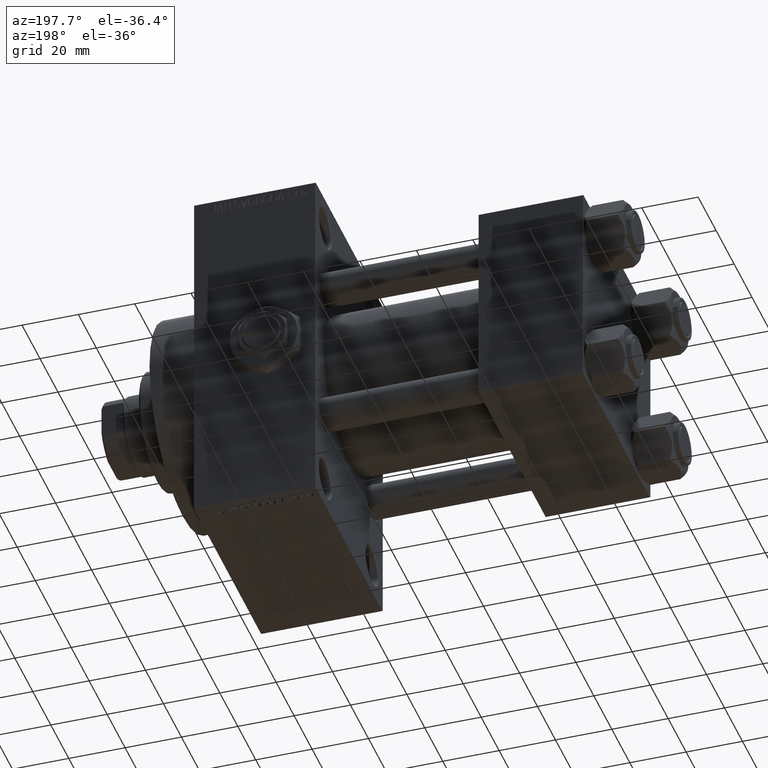
[diagram: clean part render]
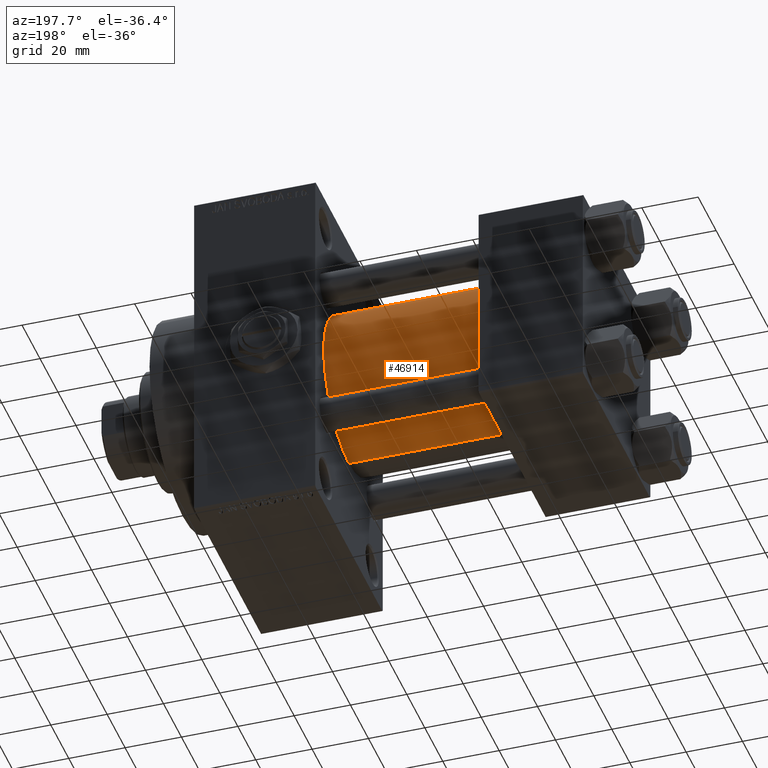
[diagram: same view with one face highlighted and labeled with its STEP entity id]
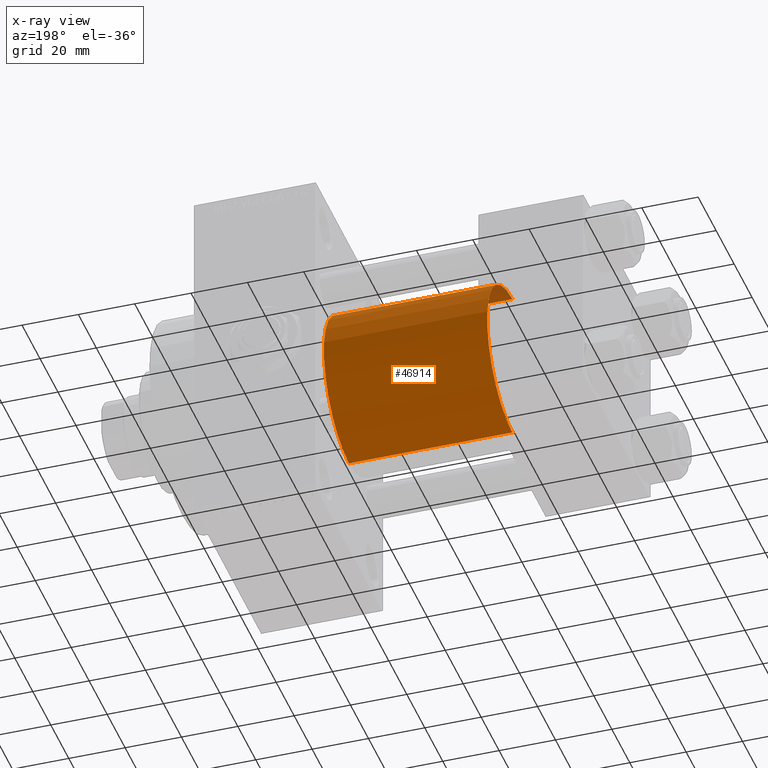
[diagram: x-ray of the same camera — body ghosted, the highlighted face saturated]
A machine part, auxiliary view. The second image highlights one B-rep face of the part: STEP entity #46914.
The next image is the same camera in x-ray: the body ghosted, the highlighted face saturated — about 1% of this face is hidden behind the body in this view.
In plain terms, the highlighted cylindrical surface (partial cylindrical patch) has radius 28 mm, axis along (-1, -0, -0).
Its self-contained STEP definition (entity closure, byte-faithful):
#1261 = ORIENTED_EDGE ( 'NONE', *, *, #38608, .F. ) ;
#2522 = AXIS2_PLACEMENT_3D ( 'NONE', #26572, #40708, #48870 ) ;
#3038 = DIRECTION ( 'NONE',  ( 0.000000000000000000, 0.000000000000000000, 1.000000000000000000 ) ) ;
#5432 = DIRECTION ( 'NONE',  ( -1.000000000000000000, -0.000000000000000000, -0.000000000000000000 ) ) ;
#6750 = CYLINDRICAL_SURFACE ( 'NONE', #17543, 28.00000000000000000 ) ;
#6988 = DIRECTION ( 'NONE',  ( -1.000000000000000000, -0.000000000000000000, -0.000000000000000000 ) ) ;
#9360 = CARTESIAN_POINT ( 'NONE',  ( 37.00000000000000000, -2.602085213965210642E-15, 0.000000000000000000 ) ) ;
#10479 = CARTESIAN_POINT ( 'NONE',  ( 95.00000000000000000, -2.602085213965210642E-15, 28.00000000000000000 ) ) ;
#12863 = CARTESIAN_POINT ( 'NONE',  ( 95.00000000000000000, 8.269258236473776482E-16, -28.00000000000000000 ) ) ;
#13723 = VERTEX_POINT ( 'NONE', #25304 ) ;
#14512 = VERTEX_POINT ( 'NONE', #42726 ) ;
#15373 = ORIENTED_EDGE ( 'NONE', *, *, #23454, .F. ) ;
#17032 = DIRECTION ( 'NONE',  ( 0.000000000000000000, 0.000000000000000000, 1.000000000000000000 ) ) ;
#17543 = AXIS2_PLACEMENT_3D ( 'NONE', #21830, #6988, #3038 ) ;
#20577 = EDGE_CURVE ( 'NONE', #14512, #13723, #22941, .T. ) ;
#20948 = CARTESIAN_POINT ( 'NONE',  ( 95.00000000000000000, -2.602085213965210642E-15, 28.00000000000000000 ) ) ;
#20968 = DIRECTION ( 'NONE',  ( 1.000000000000000000, -0.000000000000000000, 0.000000000000000000 ) ) ;
#21830 = CARTESIAN_POINT ( 'NONE',  ( 95.00000000000000000, -2.602085213965210642E-15, 0.000000000000000000 ) ) ;
#22661 = VECTOR ( 'NONE', #44368, 1000.000000000000000 ) ;
#22812 = ORIENTED_EDGE ( 'NONE', *, *, #33621, .T. ) ;
#22941 = CIRCLE ( 'NONE', #34776, 28.00000000000000000 ) ;
#23454 = EDGE_CURVE ( 'NONE', #37076, #29413, #24644, .T. ) ;
#24644 = CIRCLE ( 'NONE', #2522, 28.00000000000000000 ) ;
#25304 = CARTESIAN_POINT ( 'NONE',  ( 37.00000000000000000, -2.602085213965210642E-15, 28.00000000000000000 ) ) ;
#26572 = CARTESIAN_POINT ( 'NONE',  ( 95.00000000000000000, -2.602085213965210642E-15, 0.000000000000000000 ) ) ;
#27217 = VECTOR ( 'NONE', #5432, 1000.000000000000000 ) ;
#29413 = VERTEX_POINT ( 'NONE', #20948 ) ;
#31641 = LINE ( 'NONE', #12863, #27217 ) ;
#32971 = LINE ( 'NONE', #10479, #22661 ) ;
#33621 = EDGE_CURVE ( 'NONE', #37076, #14512, #31641, .T. ) ;
#34776 = AXIS2_PLACEMENT_3D ( 'NONE', #9360, #20968, #17032 ) ;
#37076 = VERTEX_POINT ( 'NONE', #45316 ) ;
#38516 = EDGE_LOOP ( 'NONE', ( #15373, #22812, #45025, #1261 ) ) ;
#38608 = EDGE_CURVE ( 'NONE', #29413, #13723, #32971, .T. ) ;
#40650 = FACE_OUTER_BOUND ( 'NONE', #38516, .T. ) ;
#40708 = DIRECTION ( 'NONE',  ( 1.000000000000000000, 0.000000000000000000, 0.000000000000000000 ) ) ;
#42726 = CARTESIAN_POINT ( 'NONE',  ( 37.00000000000000000, 8.269258236473776482E-16, -28.00000000000000000 ) ) ;
#44368 = DIRECTION ( 'NONE',  ( -1.000000000000000000, -0.000000000000000000, -0.000000000000000000 ) ) ;
#45025 = ORIENTED_EDGE ( 'NONE', *, *, #20577, .T. ) ;
#45316 = CARTESIAN_POINT ( 'NONE',  ( 95.00000000000000000, 8.269258236473776482E-16, -28.00000000000000000 ) ) ;
#46914 = ADVANCED_FACE ( 'NONE', ( #40650 ), #6750, .T. ) ;
#48870 = DIRECTION ( 'NONE',  ( 0.000000000000000000, 0.000000000000000000, -1.000000000000000000 ) ) ;